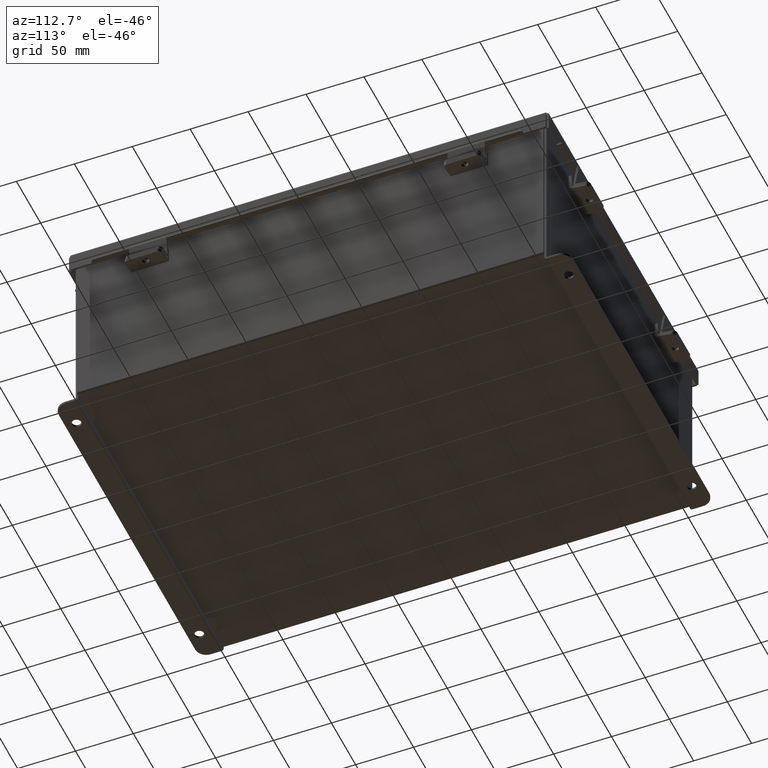
[diagram: clean part render]
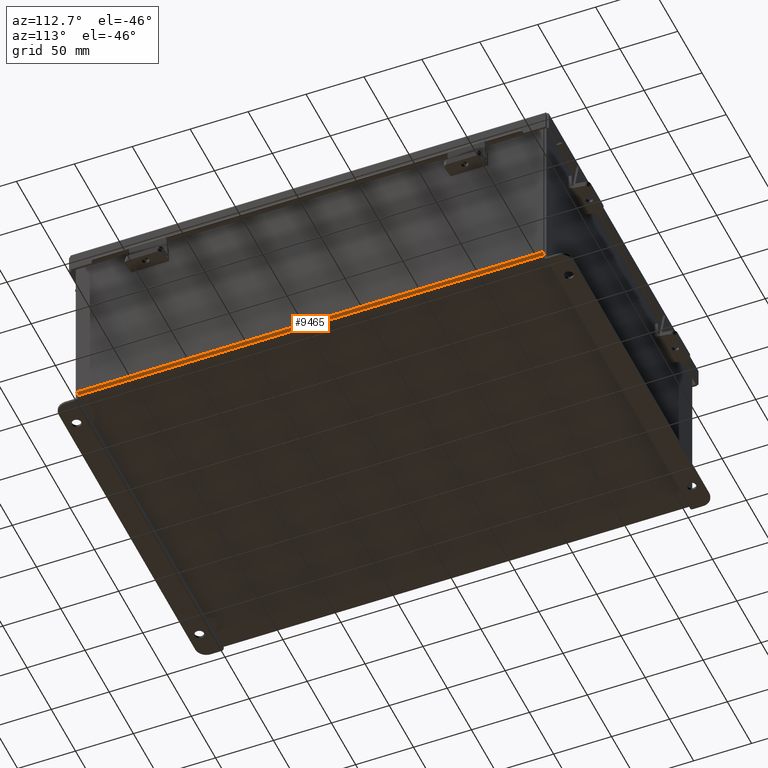
[diagram: same view with one face highlighted and labeled with its STEP entity id]
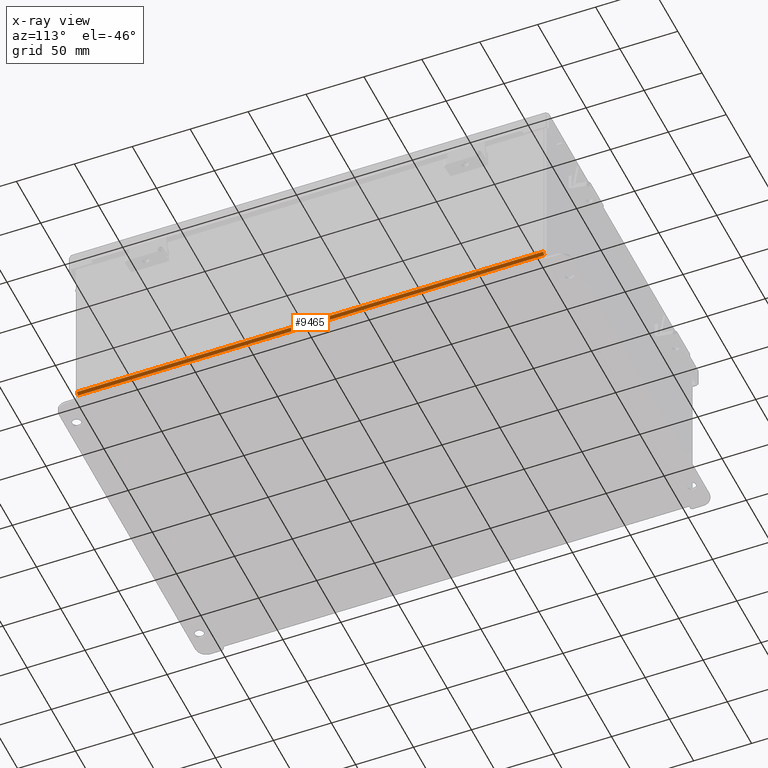
[diagram: x-ray of the same camera — body ghosted, the highlighted face saturated]
A machine part, auxiliary view. The second image highlights one B-rep face of the part: STEP entity #9465.
The next image is the same camera in x-ray: the body ghosted, the highlighted face saturated — about 0% of this face is hidden behind the body in this view.
In plain terms, the highlighted cylindrical surface (edge-blend (fillet) strip) has radius 2.2276 mm, axis along (0, 1, 0).
Its self-contained STEP definition (entity closure, byte-faithful):
#417 = DIRECTION ( 'NONE',  ( -0.0000000000000000000, -1.000000000000000000, -0.0000000000000000000 ) ) ;
#575 = CARTESIAN_POINT ( 'NONE',  ( 5.912300000000000100, -7.925300000000000000, 0.01300000000000015000 ) ) ;
#709 = VERTEX_POINT ( 'NONE', #6075 ) ;
#796 = DIRECTION ( 'NONE',  ( 0.0000000000000000000, 1.000000000000000000, 0.0000000000000000000 ) ) ;
#1378 = VERTEX_POINT ( 'NONE', #7999 ) ;
#1779 = VECTOR ( 'NONE', #2187, 39.37007874015748100 ) ;
#1908 = VECTOR ( 'NONE', #417, 39.37007874015748100 ) ;
#2022 = CARTESIAN_POINT ( 'NONE',  ( 5.912300000000000100, 7.925300000000000000, -0.07469999999999994700 ) ) ;
#2120 = EDGE_CURVE ( 'NONE', #3413, #1378, #7584, .T. ) ;
#2121 = LINE ( 'NONE', #2022, #1779 ) ;
#2187 = DIRECTION ( 'NONE',  ( -0.0000000000000000000, -1.000000000000000000, -0.0000000000000000000 ) ) ;
#2220 = DIRECTION ( 'NONE',  ( 0.0000000000000000000, 1.000000000000000000, 0.0000000000000000000 ) ) ;
#3171 = ORIENTED_EDGE ( 'NONE', *, *, #7105, .F. ) ;
#3413 = VERTEX_POINT ( 'NONE', #6841 ) ;
#3468 = EDGE_LOOP ( 'NONE', ( #3171, #6401, #7804, #7639 ) ) ;
#3683 = DIRECTION ( 'NONE',  ( 1.000000000000000000, 0.0000000000000000000, -3.553037762569317100E-015 ) ) ;
#4303 = LINE ( 'NONE', #5588, #1908 ) ;
#4850 = CARTESIAN_POINT ( 'NONE',  ( 5.912300000000000100, 7.925299999999997300, -0.07469999999999994700 ) ) ;
#4935 = DIRECTION ( 'NONE',  ( 0.0000000000000000000, 0.0000000000000000000, 1.000000000000000000 ) ) ;
#5588 = CARTESIAN_POINT ( 'NONE',  ( 6.000000000000000900, -7.925300000000000000, 0.01299999999999984300 ) ) ;
#5929 = CARTESIAN_POINT ( 'NONE',  ( 5.912300000000000100, 7.925300000000000000, 0.01300000000000015000 ) ) ;
#6050 = AXIS2_PLACEMENT_3D ( 'NONE', #6659, #2220, #7412 ) ;
#6075 = CARTESIAN_POINT ( 'NONE',  ( 6.000000000000000900, 7.925299999999998200, 0.01299999999999984300 ) ) ;
#6401 = ORIENTED_EDGE ( 'NONE', *, *, #9062, .F. ) ;
#6659 = CARTESIAN_POINT ( 'NONE',  ( 5.912300000000000100, 7.925299999999997300, 0.01300000000000015000 ) ) ;
#6730 = FACE_OUTER_BOUND ( 'NONE', #3468, .T. ) ;
#6841 = CARTESIAN_POINT ( 'NONE',  ( 5.912300000000000100, -7.925300000000000000, -0.07470000000000000300 ) ) ;
#7066 = AXIS2_PLACEMENT_3D ( 'NONE', #575, #7122, #4935 ) ;
#7105 = EDGE_CURVE ( 'NONE', #7523, #3413, #2121, .T. ) ;
#7122 = DIRECTION ( 'NONE',  ( -0.0000000000000000000, -1.000000000000000000, -0.0000000000000000000 ) ) ;
#7192 = CYLINDRICAL_SURFACE ( 'NONE', #7507, 0.08770000000000026400 ) ;
#7412 = DIRECTION ( 'NONE',  ( 0.0000000000000000000, 0.0000000000000000000, 1.000000000000000000 ) ) ;
#7507 = AXIS2_PLACEMENT_3D ( 'NONE', #5929, #796, #3683 ) ;
#7523 = VERTEX_POINT ( 'NONE', #4850 ) ;
#7584 = CIRCLE ( 'NONE', #7066, 0.08770000000000009700 ) ;
#7639 = ORIENTED_EDGE ( 'NONE', *, *, #2120, .F. ) ;
#7804 = ORIENTED_EDGE ( 'NONE', *, *, #7951, .T. ) ;
#7951 = EDGE_CURVE ( 'NONE', #709, #1378, #4303, .T. ) ;
#7999 = CARTESIAN_POINT ( 'NONE',  ( 6.000000000000000900, -7.925300000000000000, 0.01299999999999984300 ) ) ;
#8229 = CIRCLE ( 'NONE', #6050, 0.08770000000000009700 ) ;
#9062 = EDGE_CURVE ( 'NONE', #709, #7523, #8229, .T. ) ;
#9465 = ADVANCED_FACE ( 'NONE', ( #6730 ), #7192, .T. ) ;